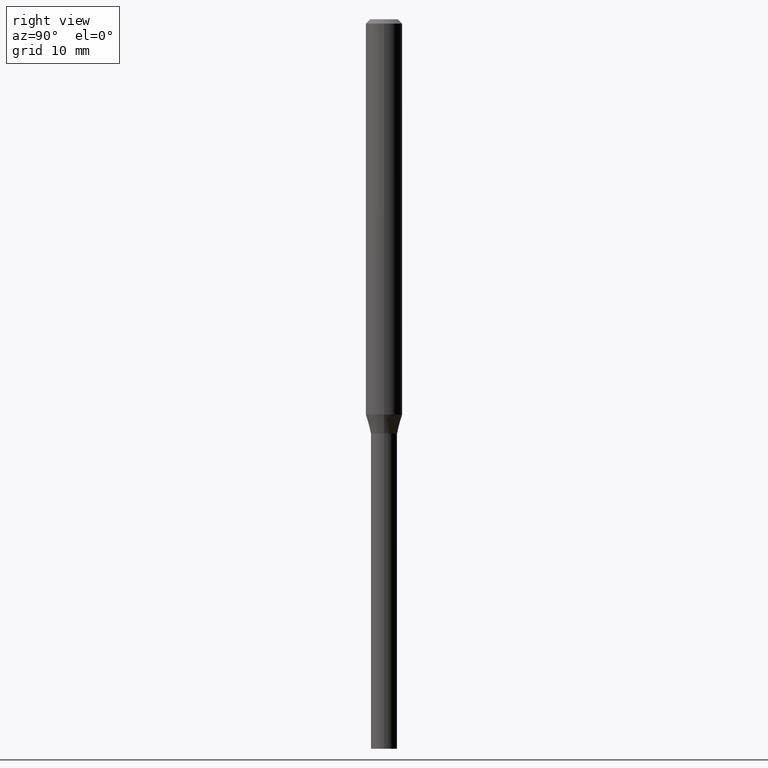
[diagram: clean part render]
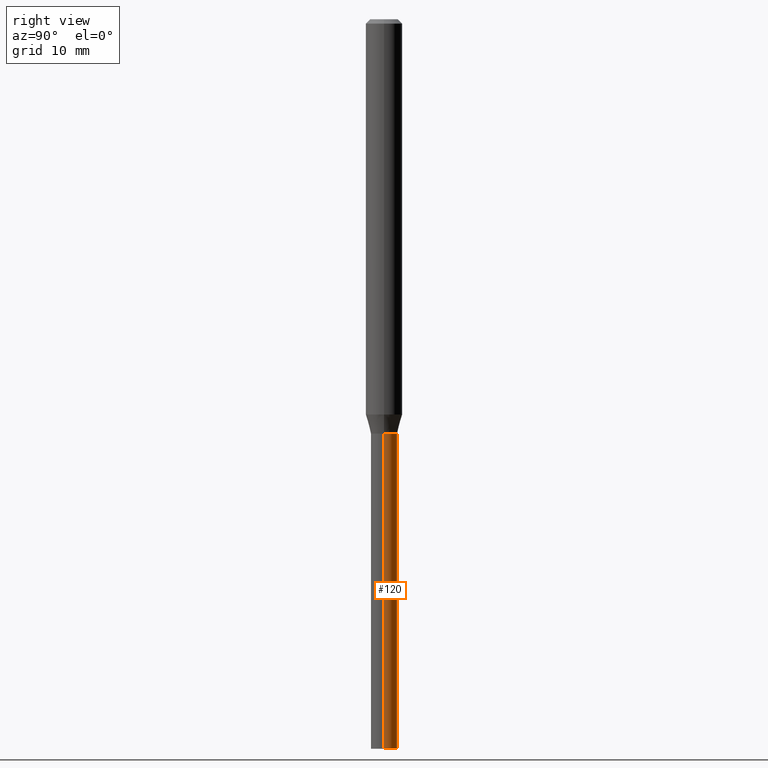
[diagram: same view with one face highlighted and labeled with its STEP entity id]
A machine part, right view. The second image highlights one B-rep face of the part: STEP entity #120.
In plain terms, the highlighted cylindrical surface (edge-blend (fillet) strip) has radius 1.143 mm, axis along (-0, 0, 1).
Its self-contained STEP definition (entity closure, byte-faithful):
#19 = VERTEX_POINT ( 'NONE', #102 ) ;
#49 = VERTEX_POINT ( 'NONE', #398 ) ;
#52 = EDGE_CURVE ( 'NONE', #49, #385, #96, .T. ) ;
#82 = LINE ( 'NONE', #343, #250 ) ;
#87 = ORIENTED_EDGE ( 'NONE', *, *, #223, .T. ) ;
#90 = VERTEX_POINT ( 'NONE', #194 ) ;
#96 = CIRCLE ( 'NONE', #122, 0.04499999999999999833 ) ;
#102 = CARTESIAN_POINT ( 'NONE',  ( 0.04499999999999999833, -5.272136821653149037E-15, -1.420000000000000151 ) ) ;
#120 = ADVANCED_FACE ( 'NONE', ( #222 ), #188, .T. ) ;
#122 = AXIS2_PLACEMENT_3D ( 'NONE', #315, #461, #137 ) ;
#131 = ORIENTED_EDGE ( 'NONE', *, *, #274, .F. ) ;
#134 = ORIENTED_EDGE ( 'NONE', *, *, #320, .F. ) ;
#137 = DIRECTION ( 'NONE',  ( 1.000000000000000000, -6.982962677686246989E-15, 0.000000000000000000 ) ) ;
#166 = DIRECTION ( 'NONE',  ( -2.445468806185136877E-29, 3.491481338843145188E-15, 1.000000000000000000 ) ) ;
#188 = CYLINDRICAL_SURFACE ( 'NONE', #258, 0.04499999999999999833 ) ;
#194 = CARTESIAN_POINT ( 'NONE',  ( -0.04499999999999999833, -6.523559193040520779E-15, -1.420000000000000151 ) ) ;
#220 = LINE ( 'NONE', #364, #446 ) ;
#222 = FACE_OUTER_BOUND ( 'NONE', #245, .T. ) ;
#223 = EDGE_CURVE ( 'NONE', #385, #90, #220, .T. ) ;
#233 = DIRECTION ( 'NONE',  ( 1.000000000000000000, -6.982962677686269077E-15, 0.000000000000000000 ) ) ;
#236 = CARTESIAN_POINT ( 'NONE',  ( 3.472565704782894214E-29, -4.957903501157267351E-15, -1.420000000000000151 ) ) ;
#245 = EDGE_LOOP ( 'NONE', ( #254, #87, #134, #131 ) ) ;
#250 = VECTOR ( 'NONE', #450, 39.37007874015748143 ) ;
#254 = ORIENTED_EDGE ( 'NONE', *, *, #52, .T. ) ;
#258 = AXIS2_PLACEMENT_3D ( 'NONE', #410, #335, #326 ) ;
#273 = DIRECTION ( 'NONE',  ( -2.445468806185136597E-29, 3.491481338843145583E-15, 1.000000000000000000 ) ) ;
#274 = EDGE_CURVE ( 'NONE', #49, #19, #82, .T. ) ;
#279 = CARTESIAN_POINT ( 'NONE',  ( -0.04499999999999999833, -6.523559193040520779E-15, -2.500000000000000000 ) ) ;
#291 = CIRCLE ( 'NONE', #455, 0.04499999999999999833 ) ;
#315 = CARTESIAN_POINT ( 'NONE',  ( 6.113672015462842613E-29, -8.728703347107864943E-15, -2.500000000000000000 ) ) ;
#320 = EDGE_CURVE ( 'NONE', #19, #90, #291, .T. ) ;
#326 = DIRECTION ( 'NONE',  ( 1.000000000000000000, -6.982962677686266711E-15, 4.876176775795935793E-29 ) ) ;
#335 = DIRECTION ( 'NONE',  ( -2.445468806185136597E-29, 3.491481338843145583E-15, 1.000000000000000000 ) ) ;
#343 = CARTESIAN_POINT ( 'NONE',  ( 0.04499999999999999833, -3.142333204958819823E-16, 2.194279549108170967E-30 ) ) ;
#364 = CARTESIAN_POINT ( 'NONE',  ( -0.04499999999999999833, 3.197442310920450718E-16, -2.213520790614707560E-30 ) ) ;
#385 = VERTEX_POINT ( 'NONE', #279 ) ;
#398 = CARTESIAN_POINT ( 'NONE',  ( 0.04499999999999999833, -9.042936667603745051E-15, -2.500000000000000000 ) ) ;
#410 = CARTESIAN_POINT ( 'NONE',  ( 0.000000000000000000, 0.000000000000000000, 0.000000000000000000 ) ) ;
#446 = VECTOR ( 'NONE', #166, 39.37007874015748143 ) ;
#450 = DIRECTION ( 'NONE',  ( -2.445468806185136877E-29, 3.491481338843145188E-15, 1.000000000000000000 ) ) ;
#455 = AXIS2_PLACEMENT_3D ( 'NONE', #236, #273, #233 ) ;
#461 = DIRECTION ( 'NONE',  ( -2.445468806185136597E-29, 3.491481338843145583E-15, 1.000000000000000000 ) ) ;